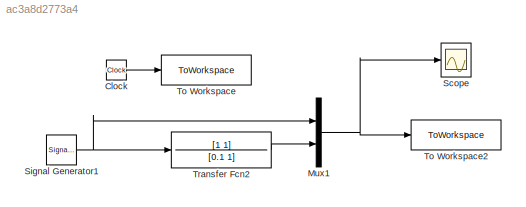
MODEL slx_ac3a8d2773a4
KIND model
CONFIG AbsTol = auto
CONFIG EnableMultiTasking = off
CONFIG FixedStep = auto
CONFIG MaxStep = auto
CONFIG MinStep = auto
CONFIG RelTol = 1e-3
CONFIG SampleTimeConstraint = Unconstrained
CONFIG SolverName = VariableStepAuto
CONFIG StartTime = 0.0
CONFIG StopTime = 5
BLOCK [Clock] Clock
  Decimation = 100
BLOCK [Mux] Mux1
  DisplayOption = bar
  Inputs = 2
BLOCK [Scope] Scope
  Floating = off
  NumInputPorts = 1
  ScopeSpecificationString = Simulink.scopes.TimeScopeBlockCfg('CurrentConfiguration', extmgr.ConfigurationSet(extmgr.Configuration('Core','General UI',true),extmgr.Configuration('Core','Source UI',true),extmgr.Configuration('Sources','WiredSimulink',true),extmgr.Configuration('Visuals','Time Domain',true,'SerializedDisplays',{struct('MinYLimReal','-13.52207','MaxYLimReal','21.69863','YLabelReal','','MinYLimMag','0.00000','Ma...<+1400ch>
BLOCK [SignalGenerator] Signal Generator1
  Frequency = 0.2
  WaveForm = square
BLOCK [ToWorkspace] To Workspace
  FixptAsFi = on
  MaxDataPoints = inf
  SampleTime = -1
  VariableName = time
BLOCK [ToWorkspace] To Workspace2
  FixptAsFi = on
  MaxDataPoints = inf
  SampleTime = -1
  VariableName = LComp
BLOCK [TransferFcn] Transfer Fcn2
  Denominator = [0.1 1]
  Numerator = [1 1]
LINE Clock:1 -> To Workspace:1
NET Mux1:1 -> Scope:1, To Workspace2:1
NET Signal Generator1:1 -> Mux1:1, Transfer Fcn2:1
LINE Transfer Fcn2:1 -> Mux1:2
note: NET lines group one-source signal fan-out (src -> all destinations, sorted); 1:1 wires keep LINE
